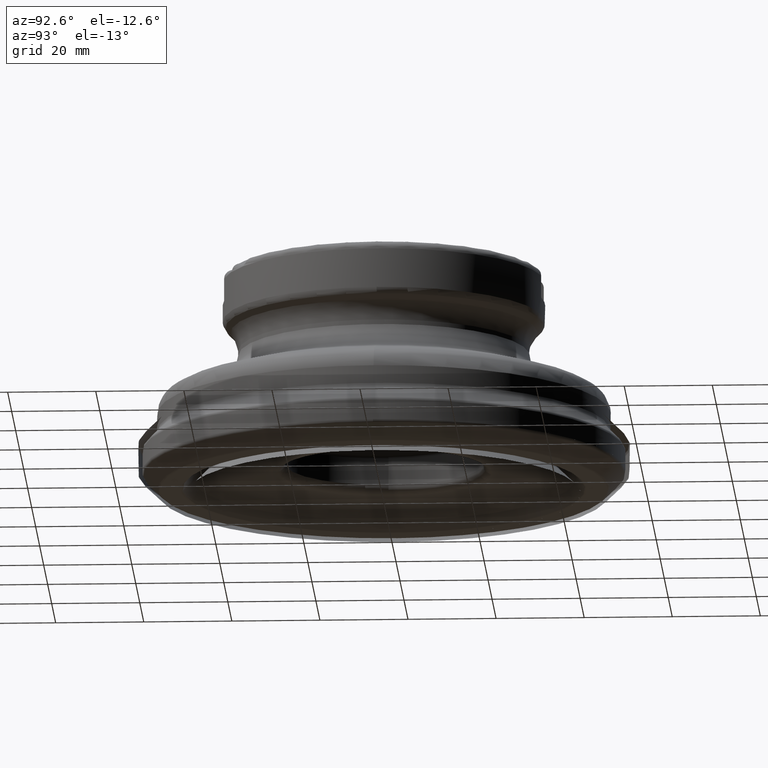
[diagram: clean part render]
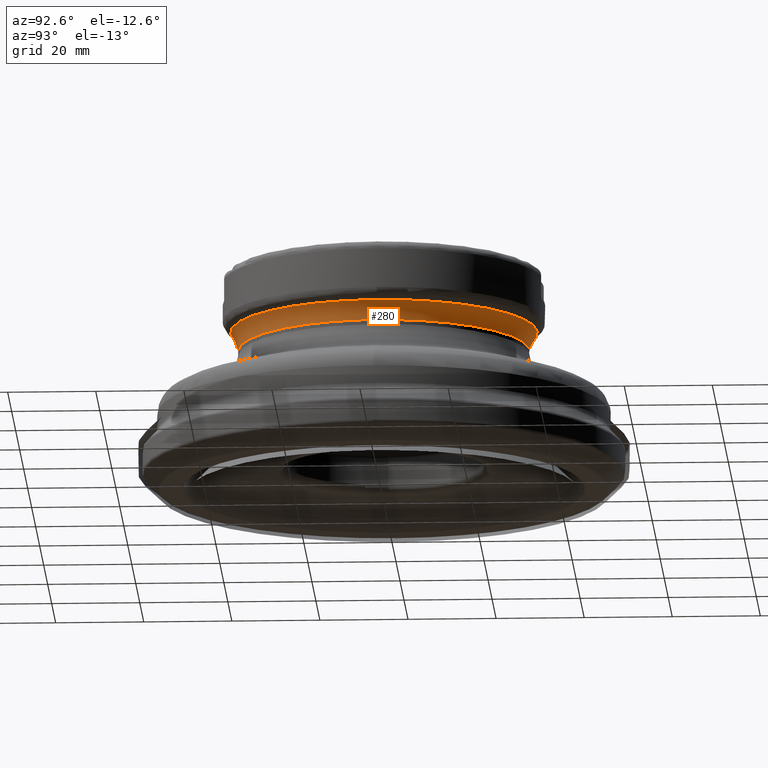
[diagram: same view with one face highlighted and labeled with its STEP entity id]
A machine part, auxiliary view. The second image highlights one B-rep face of the part: STEP entity #280.
In plain terms, the highlighted toroidal blend (fillet) surface has major radius 39.076 mm and minor (blend) radius 6 mm.
Its self-contained STEP definition (entity closure, byte-faithful):
#280=ADVANCED_FACE('',(#372,#373),#332,.F.);
#332=TOROIDAL_SURFACE('',#1071,39.0760000000001,6.);
#372=FACE_BOUND('',#476,.T.);
#373=FACE_BOUND('',#477,.T.);
#476=EDGE_LOOP('',(#615));
#477=EDGE_LOOP('',(#616));
#615=ORIENTED_EDGE('',*,*,#873,.F.);
#616=ORIENTED_EDGE('',*,*,#874,.F.);
#788=VERTEX_POINT('',#1822);
#789=VERTEX_POINT('',#1825);
#873=EDGE_CURVE('',#788,#788,#950,.T.);
#874=EDGE_CURVE('',#789,#789,#951,.T.);
#950=CIRCLE('',#1064,33.0760000000001);
#951=CIRCLE('',#1066,34.8333593128808);
#1064=AXIS2_PLACEMENT_3D('',#1821,#1213,#1214);
#1066=AXIS2_PLACEMENT_3D('',#1824,#1217,#1218);
#1071=AXIS2_PLACEMENT_3D('',#1831,#1227,#1228);
#1213=DIRECTION('',(-1.17145536458253E-15,-1.33226762955019E-15,-1.));
#1214=DIRECTION('',(-1.,3.1641356201817E-15,1.25871820726337E-15));
#1217=DIRECTION('',(1.17145536458253E-15,1.33226762955019E-15,1.));
#1218=DIRECTION('',(-1.,3.1641356201817E-15,1.19521528341506E-15));
#1227=DIRECTION('',(1.17145536458253E-15,1.33226762955019E-15,1.));
#1228=DIRECTION('',(-1.,3.1641356201817E-15,1.23150126966141E-15));
#1821=CARTESIAN_POINT('',(3.86752692443309E-14,4.39844409238096E-14,33.0147186257614));
#1822=CARTESIAN_POINT('',(-33.076,1.4864139069694E-13,33.0147186257614));
#1824=CARTESIAN_POINT('',(4.36453334372529E-14,4.96367737750712E-14,37.2573593128807));
#1825=CARTESIAN_POINT('',(-34.8333593128807,1.59854246747545E-13,37.2573593128807));
#1831=CARTESIAN_POINT('',(3.86752692443309E-14,4.39844409238096E-14,33.0147186257614));